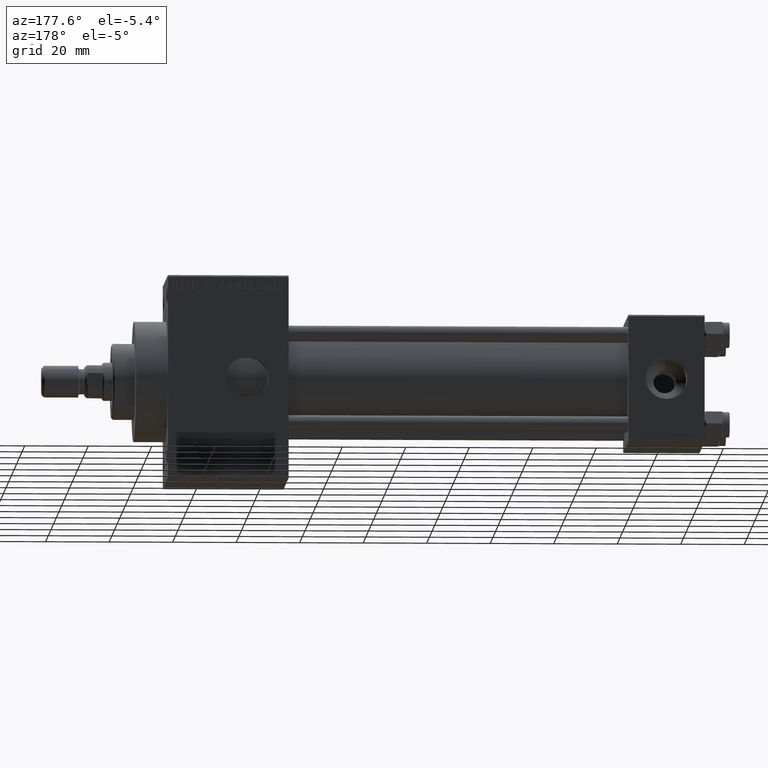
[diagram: clean part render]
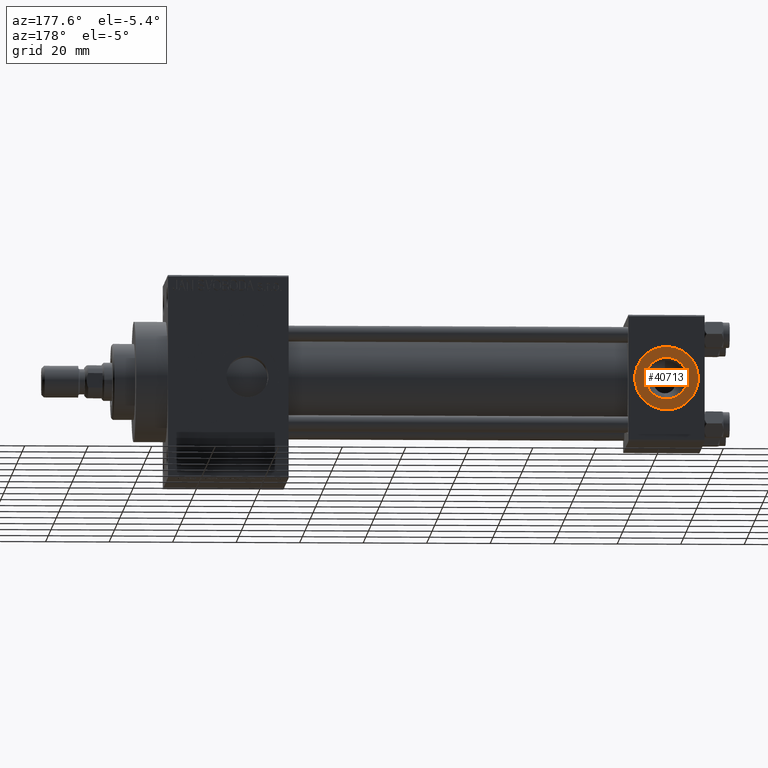
[diagram: same view with one face highlighted and labeled with its STEP entity id]
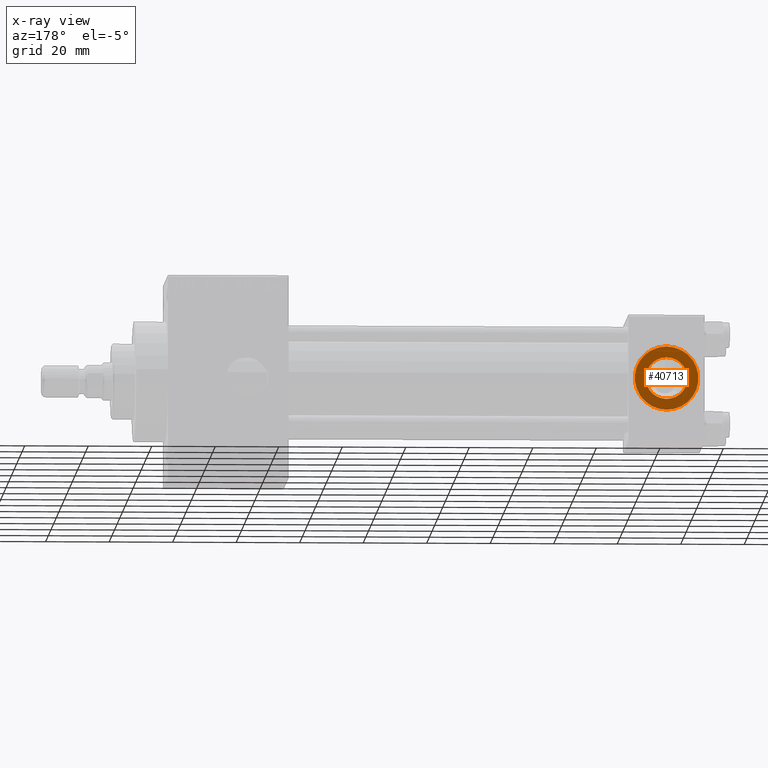
[diagram: x-ray of the same camera — body ghosted, the highlighted face saturated]
A machine part, auxiliary view. The second image highlights one B-rep face of the part: STEP entity #40713.
The next image is the same camera in x-ray: the body ghosted, the highlighted face saturated — about 0% of this face is hidden behind the body in this view.
In plain terms, the highlighted planar face has unit normal (0, 1, 0).
Its self-contained STEP definition (entity closure, byte-faithful):
#1617 = ORIENTED_EDGE ( 'NONE', *, *, #33450, .T. ) ;
#2229 = ORIENTED_EDGE ( 'NONE', *, *, #41835, .F. ) ;
#3035 = CARTESIAN_POINT ( 'NONE',  ( 12.00000000000000000, 19.80000000000000071, 0.000000000000000000 ) ) ;
#3900 = EDGE_LOOP ( 'NONE', ( #1617, #35334 ) ) ;
#5371 = VERTEX_POINT ( 'NONE', #47589 ) ;
#6032 = DIRECTION ( 'NONE',  ( 0.000000000000000000, 0.000000000000000000, 1.000000000000000000 ) ) ;
#6442 = CARTESIAN_POINT ( 'NONE',  ( 12.00000000000000000, 19.80000000000000071, 0.000000000000000000 ) ) ;
#6772 = DIRECTION ( 'NONE',  ( 0.000000000000000000, 1.000000000000000000, 0.000000000000000000 ) ) ;
#9411 = CIRCLE ( 'NONE', #37227, 10.00000000000000000 ) ;
#12876 = CARTESIAN_POINT ( 'NONE',  ( 12.00000000000000000, 19.80000000000000071, 6.579999999999998295 ) ) ;
#13914 = VERTEX_POINT ( 'NONE', #45604 ) ;
#14021 = DIRECTION ( 'NONE',  ( 0.000000000000000000, 1.000000000000000000, 0.000000000000000000 ) ) ;
#17550 = DIRECTION ( 'NONE',  ( 0.000000000000000000, 1.000000000000000000, 0.000000000000000000 ) ) ;
#18247 = DIRECTION ( 'NONE',  ( 0.000000000000000000, 0.000000000000000000, 1.000000000000000000 ) ) ;
#20046 = EDGE_CURVE ( 'NONE', #13914, #25995, #32905, .T. ) ;
#20061 = CARTESIAN_POINT ( 'NONE',  ( 12.00000000000000000, 19.80000000000000071, 0.000000000000000000 ) ) ;
#24286 = DIRECTION ( 'NONE',  ( 0.000000000000000000, -0.000000000000000000, 1.000000000000000000 ) ) ;
#24534 = FACE_OUTER_BOUND ( 'NONE', #3900, .T. ) ;
#25995 = VERTEX_POINT ( 'NONE', #12876 ) ;
#26248 = AXIS2_PLACEMENT_3D ( 'NONE', #47862, #17550, #40167 ) ;
#26970 = ORIENTED_EDGE ( 'NONE', *, *, #20046, .F. ) ;
#27883 = EDGE_LOOP ( 'NONE', ( #2229, #26970 ) ) ;
#29108 = DIRECTION ( 'NONE',  ( 0.000000000000000000, 1.000000000000000000, 0.000000000000000000 ) ) ;
#31858 = AXIS2_PLACEMENT_3D ( 'NONE', #20061, #42692, #24286 ) ;
#32003 = VERTEX_POINT ( 'NONE', #36003 ) ;
#32905 = CIRCLE ( 'NONE', #42446, 6.579999999999998295 ) ;
#32913 = CARTESIAN_POINT ( 'NONE',  ( 12.00000000000000000, 19.80000000000000071, 0.000000000000000000 ) ) ;
#33450 = EDGE_CURVE ( 'NONE', #5371, #32003, #9411, .T. ) ;
#35228 = FACE_BOUND ( 'NONE', #27883, .T. ) ;
#35334 = ORIENTED_EDGE ( 'NONE', *, *, #39736, .T. ) ;
#35480 = PLANE ( 'NONE',  #31858 ) ;
#36003 = CARTESIAN_POINT ( 'NONE',  ( 12.00000000000000178, 19.80000000000000071, -10.00000000000000000 ) ) ;
#37227 = AXIS2_PLACEMENT_3D ( 'NONE', #3035, #6772, #18247 ) ;
#37428 = AXIS2_PLACEMENT_3D ( 'NONE', #6442, #29108, #47505 ) ;
#39736 = EDGE_CURVE ( 'NONE', #32003, #5371, #46081, .T. ) ;
#40167 = DIRECTION ( 'NONE',  ( 0.000000000000000000, 0.000000000000000000, 1.000000000000000000 ) ) ;
#40713 = ADVANCED_FACE ( 'NONE', ( #35228, #24534 ), #35480, .T. ) ;
#41835 = EDGE_CURVE ( 'NONE', #25995, #13914, #43768, .T. ) ;
#42446 = AXIS2_PLACEMENT_3D ( 'NONE', #32913, #14021, #6032 ) ;
#42692 = DIRECTION ( 'NONE',  ( 0.000000000000000000, 1.000000000000000000, 0.000000000000000000 ) ) ;
#43768 = CIRCLE ( 'NONE', #37428, 6.579999999999998295 ) ;
#45604 = CARTESIAN_POINT ( 'NONE',  ( 12.00000000000000000, 19.80000000000000071, -6.579999999999998295 ) ) ;
#46081 = CIRCLE ( 'NONE', #26248, 10.00000000000000000 ) ;
#47505 = DIRECTION ( 'NONE',  ( 0.000000000000000000, 0.000000000000000000, 1.000000000000000000 ) ) ;
#47589 = CARTESIAN_POINT ( 'NONE',  ( 12.00000000000000000, 19.80000000000000071, 10.00000000000000000 ) ) ;
#47862 = CARTESIAN_POINT ( 'NONE',  ( 12.00000000000000000, 19.80000000000000071, 0.000000000000000000 ) ) ;